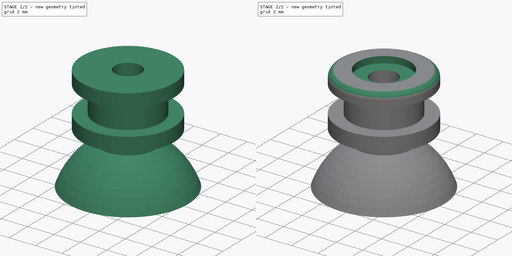
[diagram: build sequence overview — one tinted view per stage of 2, left to right]
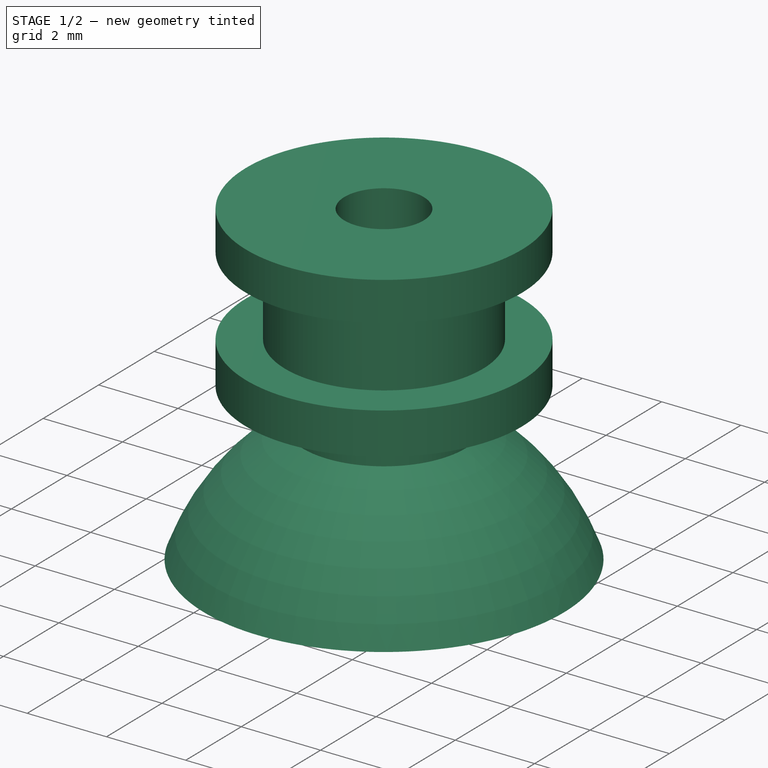
[diagram: stage 1 of 2 — iso view after this stage's code; geometry added in this stage tinted green]
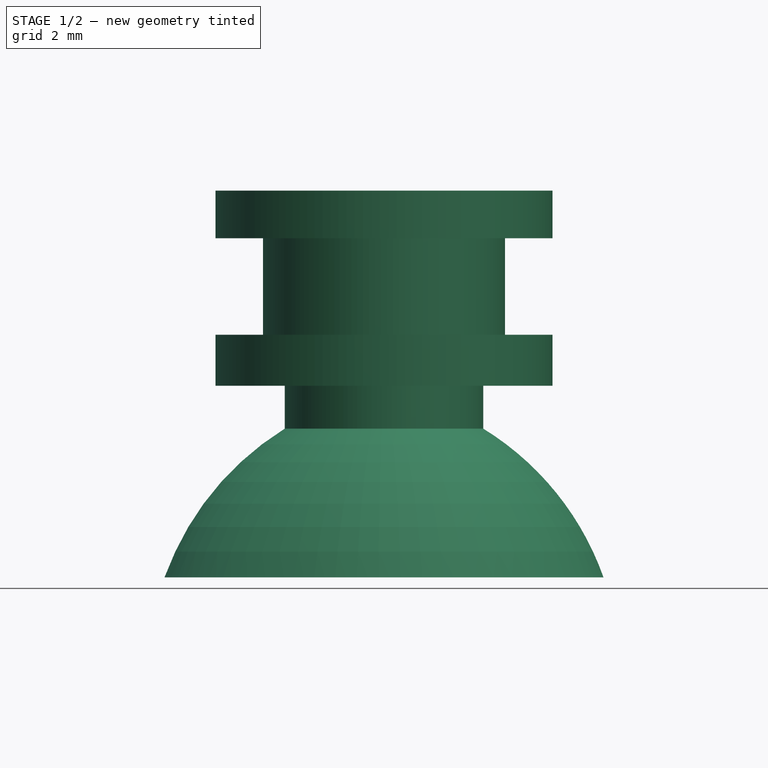
[diagram: stage 1 of 2 — front view after this stage's code; geometry added in this stage tinted green]
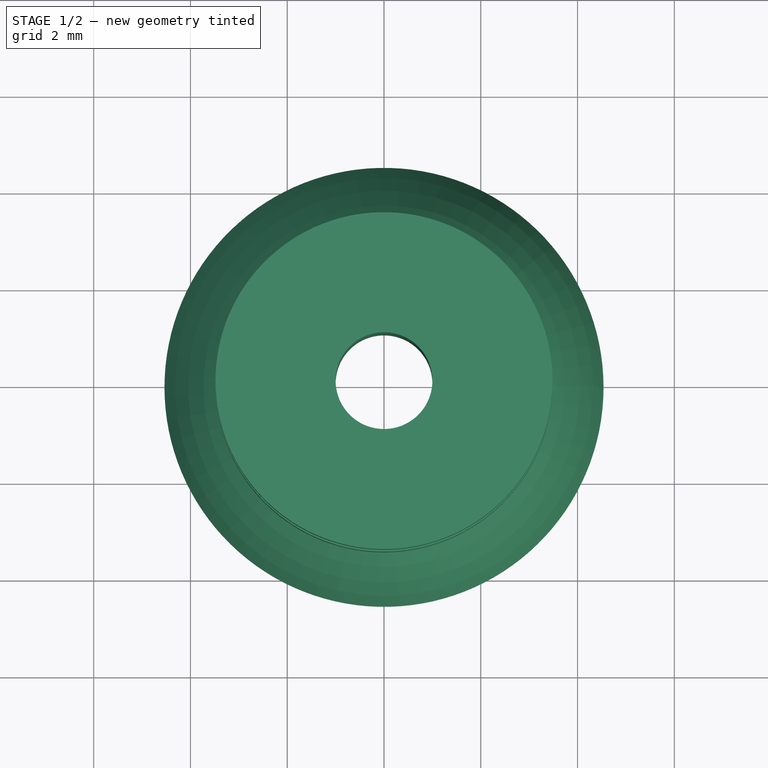
[diagram: stage 1 of 2 — top view after this stage's code; geometry added in this stage tinted green]
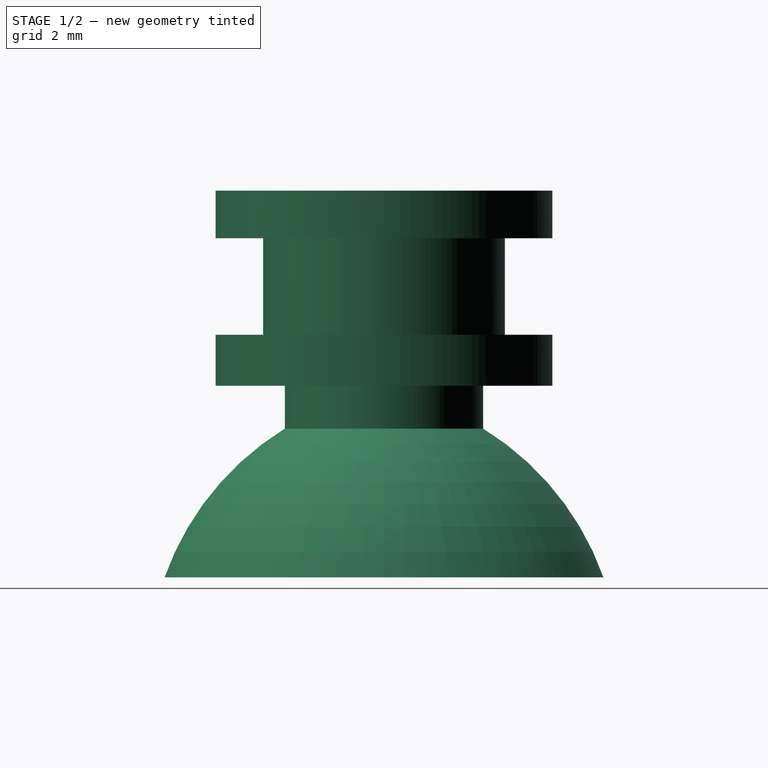
[diagram: stage 1 of 2 — right view after this stage's code; geometry added in this stage tinted green]
FCSTD DOCUMENT  (FreeCAD 0.20R29177 +233 (Git))
Label: cup04
License: All rights reserved
LicenseURL: http://en.wikipedia.org/wiki/All_rights_reserved
objects: Sketcher::SketchObject×3, Spreadsheet::Sheet×1, PartDesign::Revolution×1, PartDesign::Groove×1, PartDesign::Pocket×1, PartDesign::Fillet×1, PartDesign::Body×1
note: 12 computed .brp shape members not serialized (recipe doc carries the construction recipe); baked Part::Feature solids carry a one-line shape summary decoded from their .brp

FEATURE [Spreadsheet::Sheet] Spreadsheet
  cells = A1=suction ; B1=cup; A3=cup inside; C3(cup_in)=4.45; A4=point under x0; C4(center)=1.98; A5=cup outside; C5(cup_out)=4.95; A6=cup_hole_r; C6(cup_hole)=0.5; A7=cup neck rad; C7(cup_neck)=1.5; A8=cup filet; C8(cup_fil)=0.25
FEATURE [Sketcher::SketchObject] Sketch
  FullyConstrained = false
  MapMode = 5
  Placement = pos=(0,0,0) rot=(1,0,0;1.5708rad)
  Support = -> [XZ_Plane]
  expr: Constraints[1] = Spreadsheet.center
  expr: Constraints[6] = Spreadsheet.cup_in
  sketch-geometry (13):
    g0: GeomPoint X=0 Y=-1.98 Z=0
    g1: ArcOfCircle CenterX=0 CenterY=-1.98 CenterZ=0 NormalX=0 NormalY=0 NormalZ=1 AngleXU=0 Radius=4.45 StartAngle=0.461112 EndAngle=1.5708
    g2: LineSegment StartX=3.98524 StartY=0 StartZ=0 EndX=4.53675 EndY=-4e-16 EndZ=0
    g3: ArcOfCircle CenterX=-1.05627 CenterY=-1.97902 CenterZ=0 NormalX=0 NormalY=0 NormalZ=1 AngleXU=0 Radius=5.93282 StartAngle=0.340089 EndAngle=1.01968
    g4: LineSegment StartX=2.05041 StartY=3.07538 StartZ=0 EndX=2.05041 EndY=3.95981 EndZ=0
    g5: LineSegment StartX=2.05041 StartY=3.95981 StartZ=0 EndX=3.4821 EndY=3.95981 EndZ=0
    g6: LineSegment StartX=3.4821 StartY=3.95981 StartZ=0 EndX=3.4821 EndY=5.01518 EndZ=0
    g7: LineSegment StartX=3.4821 StartY=5.01518 StartZ=0 EndX=2.5 EndY=5.01518 EndZ=0
    g8: LineSegment StartX=2.5 StartY=5.01518 StartZ=0 EndX=2.5 EndY=7.00866 EndZ=0
    g9: LineSegment StartX=2.5 StartY=7.00866 StartZ=0 EndX=3.4821 EndY=7.00866 EndZ=0
    g10: LineSegment StartX=3.4821 StartY=7.00866 StartZ=0 EndX=3.4821 EndY=7.99367 EndZ=0
    g11: LineSegment StartX=3.4821 StartY=7.99367 StartZ=0 EndX=4e-16 EndY=7.99367 EndZ=0
    g12: LineSegment StartX=3e-16 StartY=7.99367 StartZ=0 EndX=3e-16 EndY=2.47 EndZ=0
  constraints (29):
    c: PointOnObject(g0,g-2)
    c: Distance(g0,g-1) = 1.98
    c: Coincident(g1,g0)
    c: PointOnObject(g1,g-1)
    c: PointOnObject(g2,g-1)
    c: PointOnObject(g1,g-2)
    c: Radius(g1) = 4.45
    c: Coincident(g2,g1)
    c: Coincident(g3,g2)
    c: Coincident(g4,g3)
    c: Vertical(g4)
    c: Coincident(g5,g4)
    c: Horizontal(g5)
    c: Coincident(g6,g5)
    c: Vertical(g6)
    c: Coincident(g7,g6)
    c: Horizontal(g7)
    c: Coincident(g8,g7)
    c: Vertical(g8)
    c: Coincident(g9,g8)
    c: Horizontal(g9)
    c: Coincident(g10,g9)
    c: Vertical(g10)
    c: Coincident(g11,g10)
    c: Horizontal(g11)
    c: Coincident(g12,g11)
    c: Coincident(g12,g1)
    c: Vertical(g12)
    c: Distance(g8,g12) = 2.5
FEATURE [PartDesign::Revolution] Revolution
  Angle = 360
  Axis = (0,-2e-16,1)
  Base = (0,0,0)
  Placement = pos=(0,0,0) rot=(1,0,0;1.5708rad)
  Profile = -> Sketch
  ReferenceAxis = -> Sketch [V_Axis]
  Reversed = true
FEATURE [Sketcher::SketchObject] Sketch001
  FullyConstrained = false
  MapMode = 5
  Placement = pos=(0,0,0) rot=(1,0,0;1.5708rad)
  Support = -> [XZ_Plane]
  sketch-geometry (5):
    g0: LineSegment StartX=1 StartY=8.10898 StartZ=0 EndX=1 EndY=4.19793 EndZ=0
    g1: LineSegment StartX=1 StartY=4.19793 StartZ=0 EndX=1.53317 EndY=2.20812 EndZ=0
    g2: LineSegment StartX=1 StartY=8.10898 StartZ=0 EndX=0 EndY=8.10898 EndZ=0
    g3: LineSegment StartX=0 StartY=8.10898 StartZ=0 EndX=0 EndY=2.39898 EndZ=0
    g4: LineSegment StartX=0 StartY=2.39898 StartZ=0 EndX=1.53317 EndY=2.20812 EndZ=0
  constraints (13):
    c: Vertical(g0)
    c: Coincident(g1,g0)
    c: Distance(g0,g-2) = 1
    c: Angle(g-2,g1) = 0.261799
    c: Coincident(g2,g0)
    c: Horizontal(g2)
    c: Coincident(g3,g2)
    c: PointOnObject(g3,g-2)
    c: Vertical(g3)
    c: Coincident(g4,g3)
    c: Coincident(g4,g1)
    c: DistanceY(g3,g3) = 5.71
    c: Distance(g1) = 2.06
FEATURE [PartDesign::Groove] Groove
  Angle = 360
  Axis = (0,-2e-16,1)
  Base = (0,0,0)
  BaseFeature = -> Revolution
  Placement = pos=(0,0,0) rot=(1,0,0;1.5708rad)
  Profile = -> Sketch001
  ReferenceAxis = -> Sketch001 [V_Axis]
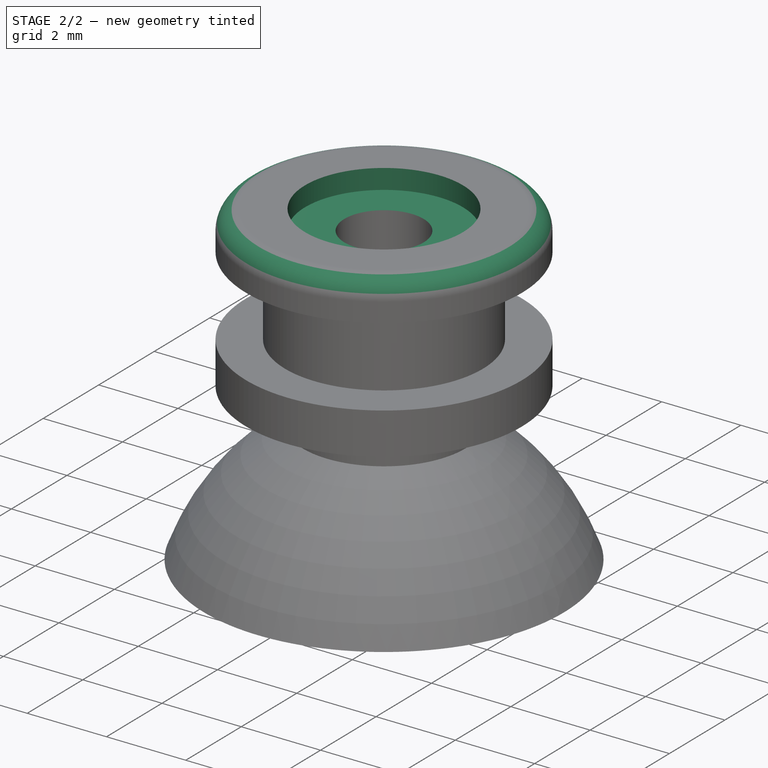
[diagram: stage 2 of 2 — iso view after this stage's code; geometry added in this stage tinted green]
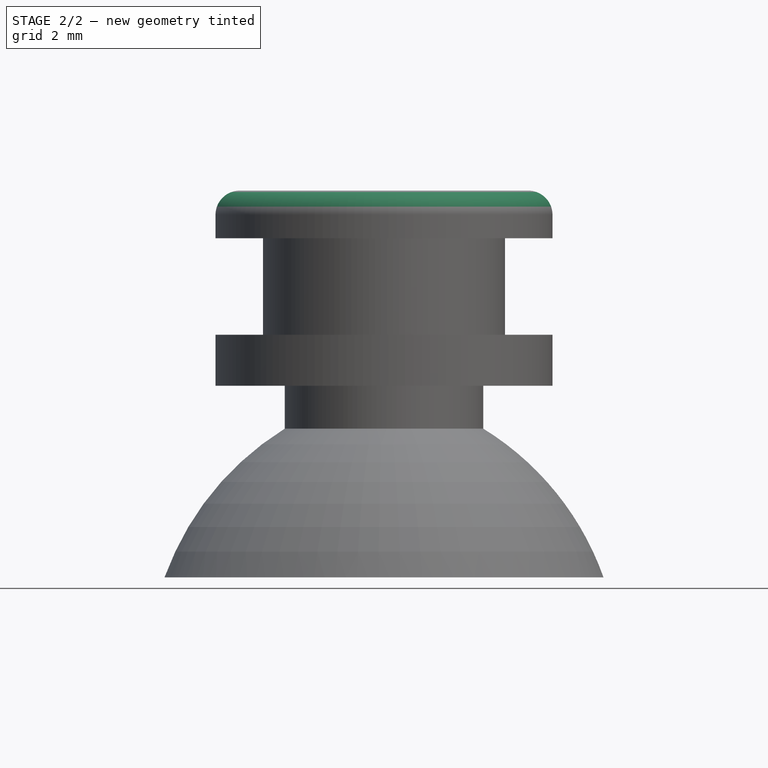
[diagram: stage 2 of 2 — front view after this stage's code; geometry added in this stage tinted green]
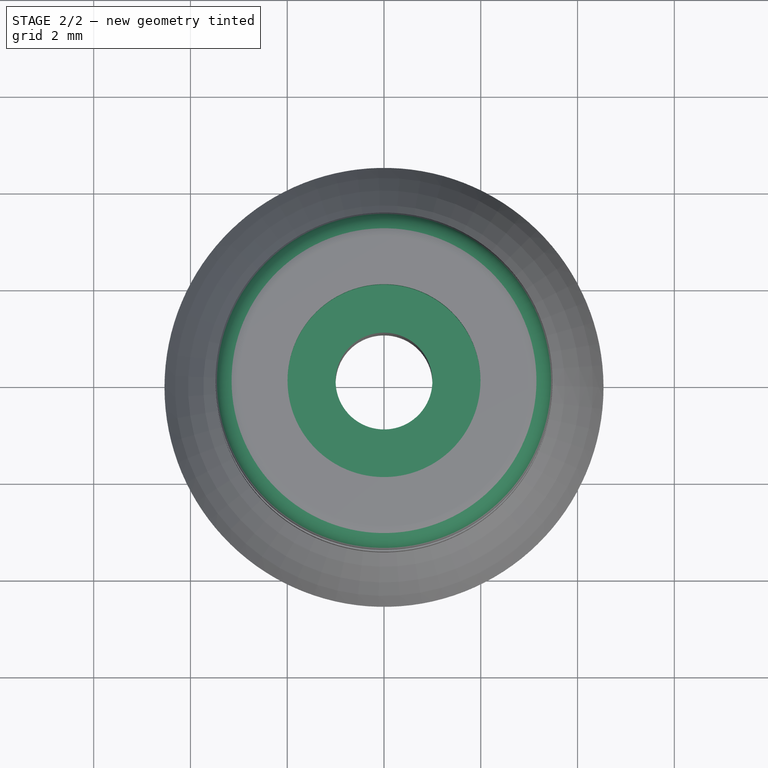
[diagram: stage 2 of 2 — top view after this stage's code; geometry added in this stage tinted green]
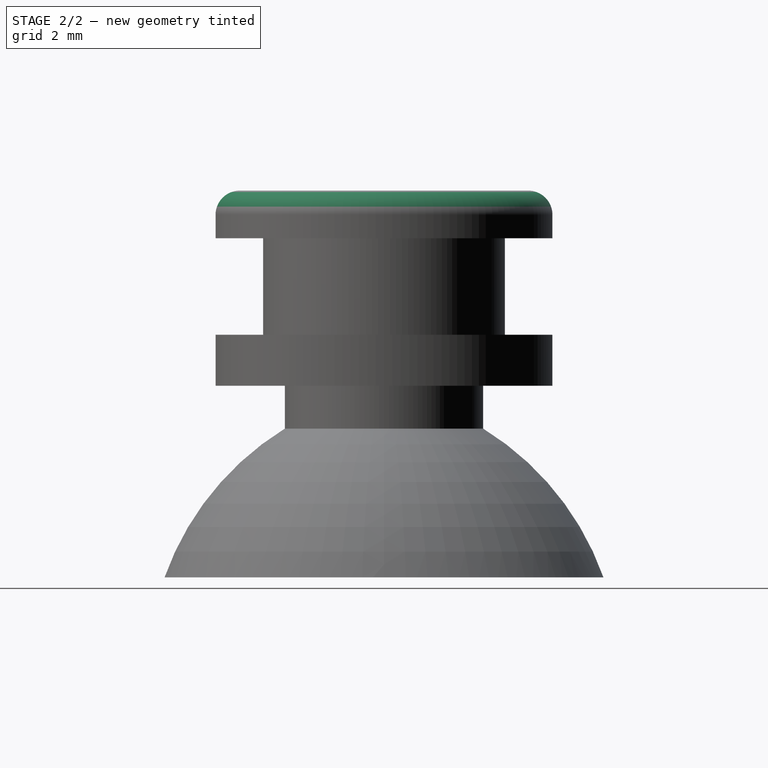
[diagram: stage 2 of 2 — right view after this stage's code; geometry added in this stage tinted green]
FEATURE [Sketcher::SketchObject] Sketch002
  FullyConstrained = false
  MapMode = 5
  Placement = pos=(0,0,7.99367) rot=(0,0,1;3.14159rad)
  Support = -> [Groove]
  sketch-geometry (1):
    g0: Circle CenterX=0 CenterY=0 CenterZ=0 NormalX=0 NormalY=0 NormalZ=1 AngleXU=0 Radius=1.99356
  constraints (1):
    c: Coincident(g0,g-1)
FEATURE [PartDesign::Pocket] Pocket
  BaseFeature = -> Groove
  Direction = (0,0,-1)
  Length = 0.5
  Length2 = 5
  Placement = pos=(0,0,0) rot=(1,0,0;1.5708rad)
  Profile = -> Sketch002
  ReferenceAxis = -> Sketch002 [N_Axis]
  Type = 0
FEATURE [PartDesign::Fillet] Fillet
  Base = -> Pocket [Edge21]
  BaseFeature = -> Pocket
  Placement = pos=(0,0,0) rot=(1,0,0;1.5708rad)
  Radius = 0.5
  SupportTransform = false
  UseAllEdges = false
FEATURE [PartDesign::Body] Body
  Group = -> [Sketch,Revolution,Sketch001,Groove,Sketch002,Pocket,Fillet]
  Origin = -> Origin
  Tip = -> Fillet
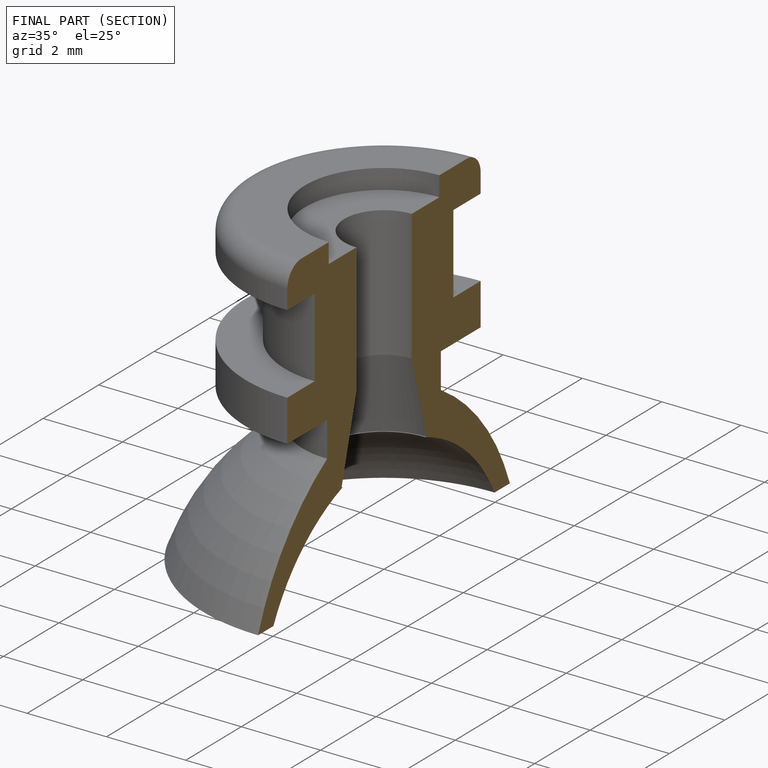
[diagram: finished part — half-section view (interior)]
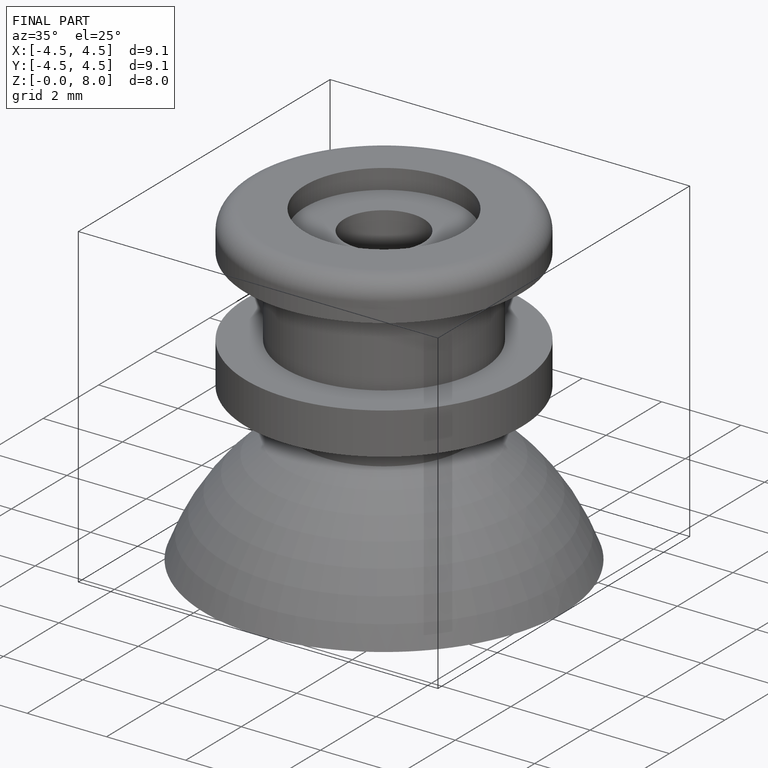
[diagram: finished part — iso view with bounding-box wireframe]
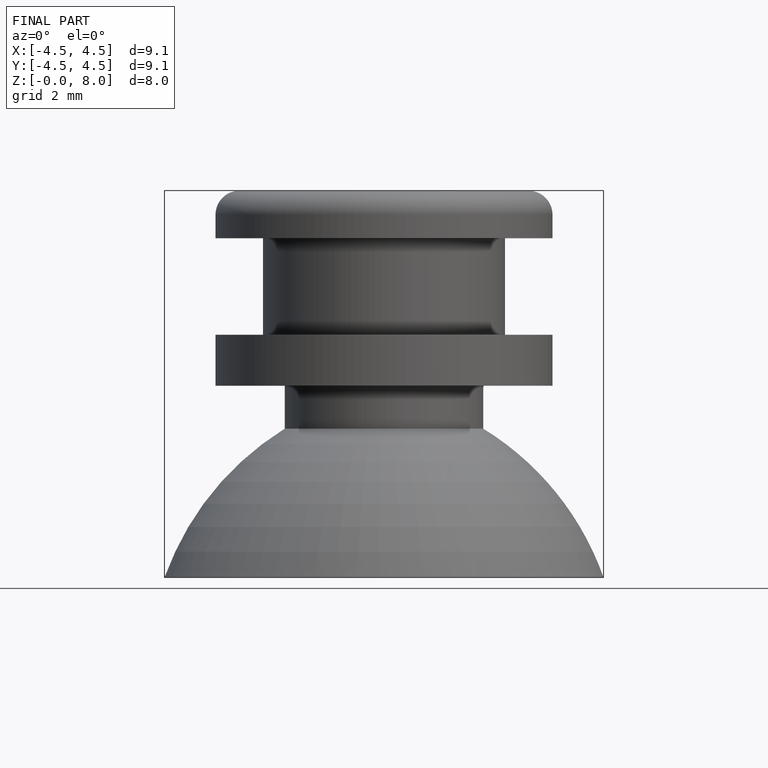
[diagram: finished part — front view with bounding-box wireframe]
